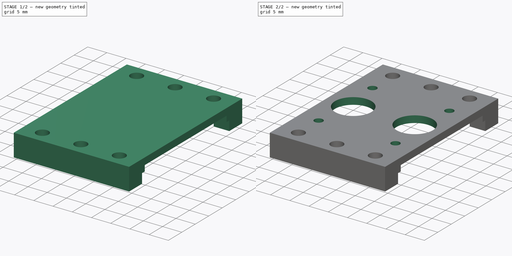
[diagram: build sequence overview — one tinted view per stage of 2, left to right]
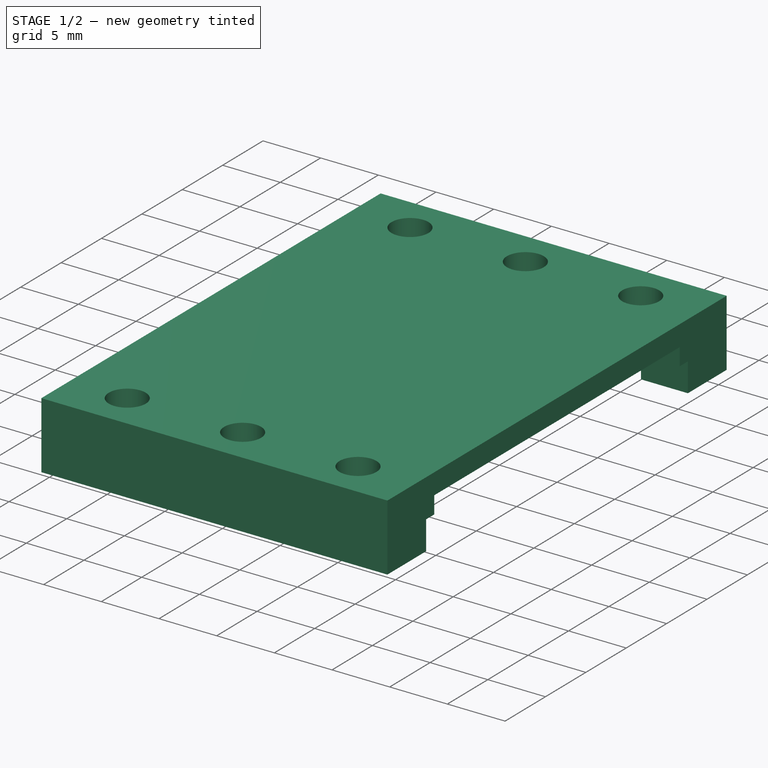
[diagram: stage 1 of 2 — iso view after this stage's code; geometry added in this stage tinted green]
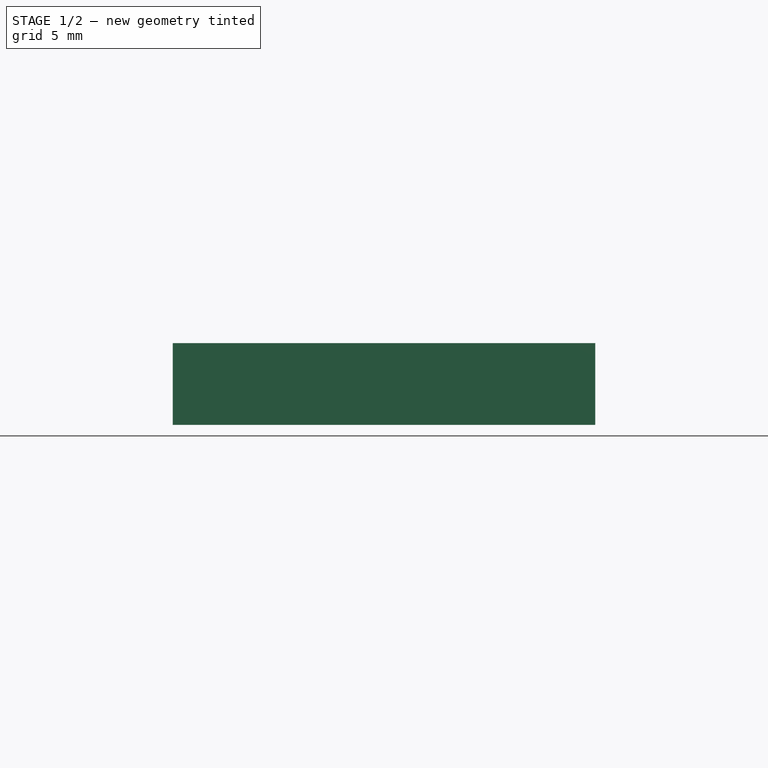
[diagram: stage 1 of 2 — front view after this stage's code; geometry added in this stage tinted green]
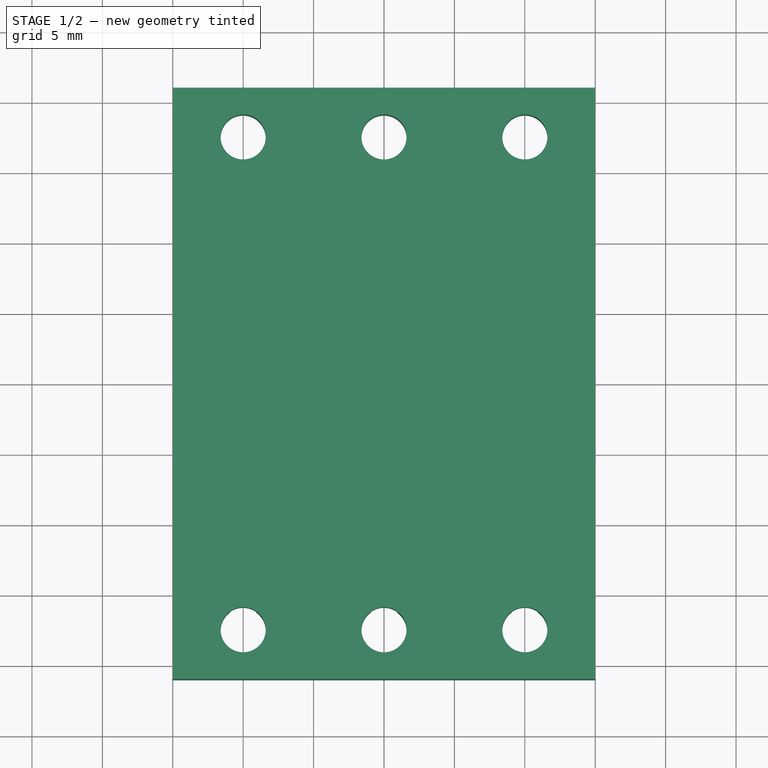
[diagram: stage 1 of 2 — top view after this stage's code; geometry added in this stage tinted green]
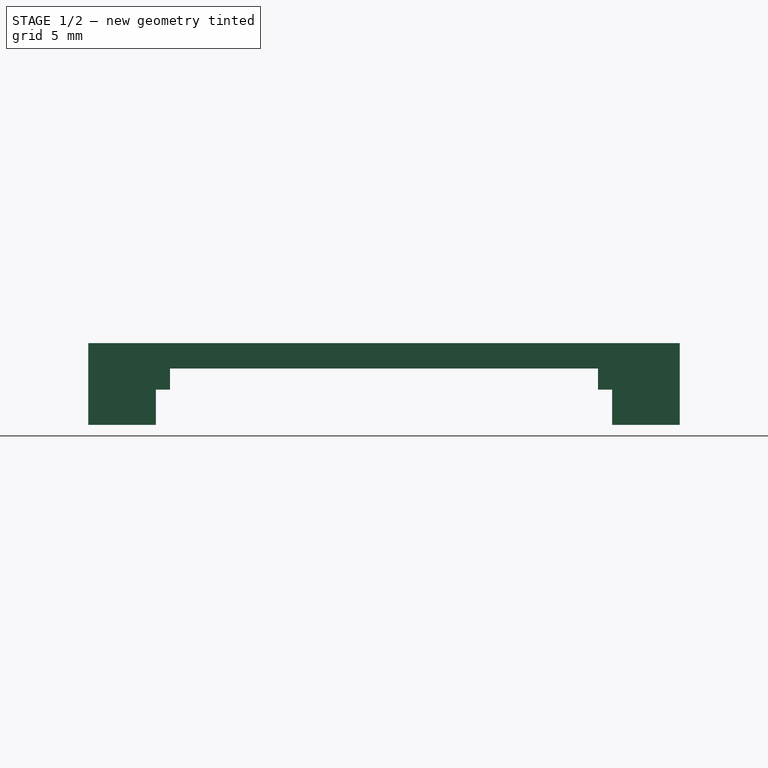
[diagram: stage 1 of 2 — right view after this stage's code; geometry added in this stage tinted green]
FCSTD DOCUMENT  (FreeCAD 0.21R33771 (Git))
Label: carriage_top
License: All rights reserved
LicenseURL: http://en.wikipedia.org/wiki/All_rights_reserved
objects: Sketcher::SketchObject×4, PartDesign::CoordinateSystem×2, PartDesign::Pocket×2, PartDesign::Pad×1, PartDesign::Hole×1, PartDesign::Body×1, App::Part×1
note: 15 computed .brp shape members not serialized (recipe doc carries the construction recipe); baked Part::Feature solids carry a one-line shape summary decoded from their .brp

FEATURE [PartDesign::CoordinateSystem] LCS_0
  AttacherType = Attacher::AttachEngine3D
  MapMode = 2
  Support = -> [X_Axis]
FEATURE [PartDesign::CoordinateSystem] LCS_001
  AttacherType = Attacher::AttachEngine3D
  MapMode = 2
  Support = -> [X_Axis001]
FEATURE [Sketcher::SketchObject] Sketch
  FullyConstrained = true
  MapMode = 5
  Placement = pos=(0,0,0) rot=(0.57735,0.57735,0.57735;2.0944rad)
  Support = -> [YZ_Plane001]
  sketch-geometry (12):
    g0: LineSegment StartX=-21 StartY=0 StartZ=0 EndX=-21 EndY=-5.8 EndZ=0
    g1: LineSegment StartX=-21 StartY=-5.8 StartZ=0 EndX=-16.2 EndY=-5.8 EndZ=0
    g2: LineSegment StartX=-16.2 StartY=-5.8 StartZ=0 EndX=-16.2 EndY=-3.3 EndZ=0
    g3: LineSegment StartX=-16.2 StartY=-3.3 StartZ=0 EndX=-15.2 EndY=-3.3 EndZ=0
    g4: LineSegment StartX=-15.2 StartY=-3.3 StartZ=0 EndX=-15.2 EndY=-1.8 EndZ=0
    g5: LineSegment StartX=-15.2 StartY=-1.8 StartZ=0 EndX=15.2 EndY=-1.8 EndZ=0
    g6: LineSegment StartX=15.2 StartY=-1.8 StartZ=0 EndX=15.2 EndY=-3.3 EndZ=0
    g7: LineSegment StartX=15.2 StartY=-3.3 StartZ=0 EndX=16.2 EndY=-3.3 EndZ=0
    g8: LineSegment StartX=16.2 StartY=-3.3 StartZ=0 EndX=16.2 EndY=-5.8 EndZ=0
    g9: LineSegment StartX=16.2 StartY=-5.8 StartZ=0 EndX=21 EndY=-5.8 EndZ=0
    g10: LineSegment StartX=21 StartY=-5.8 StartZ=0 EndX=21 EndY=0 EndZ=0
    g11: LineSegment StartX=21 StartY=0 StartZ=0 EndX=-21 EndY=0 EndZ=0
  constraints (35):
    c: Vertical(g0)
    c: Coincident(g0,g1)
    c: Horizontal(g1)
    c: Coincident(g1,g2)
    c: Vertical(g2)
    c: Coincident(g2,g3)
    c: Horizontal(g3)
    c: Coincident(g3,g4)
    c: Vertical(g4)
    c: Coincident(g4,g5)
    c: Horizontal(g5)
    c: Coincident(g5,g6)
    c: Vertical(g6)
    c: Coincident(g6,g7)
    c: Coincident(g7,g8)
    c: Vertical(g8)
    c: Coincident(g8,g9)
    c: Coincident(g9,g10)
    c: Vertical(g10)
    c: Coincident(g10,g11)
    c: Coincident(g11,g0)
    c: Horizontal(g11)
    c: Horizontal(g7)
    c: Horizontal(g9)
    c: Equal(g6,g4)
    c: Equal(g8,g2)
    c: Equal(g3,g7)
    c: Equal(g1,g9)
    c: Symmetric(g10,g0,g-1)
    c: DistanceX(g11,g11) = 42
    c: DistanceX(g3,g3) = 1
    c: DistanceX(g5,g5) = 30.4
    c: DistanceY(g6,g6) = 1.5
    c: DistanceY(g8,g8) = 2.5
    c: DistanceY(g4,g0) = 1.8
FEATURE [PartDesign::Pad] Pad
  Direction = (1,-2e-16,3e-16)
  Length = 15
  Length2 = 15
  Placement = pos=(0,0,0) rot=(1,1,1;2.0944rad)
  Profile = -> Sketch
  ReferenceAxis = -> Sketch [N_Axis]
  Type = 4
FEATURE [Sketcher::SketchObject] Sketch001
  FullyConstrained = true
  MapMode = 5
  Support = -> [XY_Plane001]
  sketch-geometry (13):
    g0: LineSegment StartX=-10 StartY=-17.5 StartZ=0 EndX=-10 EndY=17.5 EndZ=0
    g1: LineSegment StartX=-10 StartY=17.5 StartZ=0 EndX=10 EndY=17.5 EndZ=0
    g2: LineSegment StartX=10 StartY=17.5 StartZ=0 EndX=10 EndY=-17.5 EndZ=0
    g3: LineSegment StartX=10 StartY=-17.5 StartZ=0 EndX=-10 EndY=-17.5 EndZ=0
    g4: GeomPoint X=0 Y=0 Z=0
    g5: GeomPoint X=0 Y=17.5 Z=0
    g6: GeomPoint X=0 Y=-17.5 Z=0
    g7: Circle CenterX=-10 CenterY=17.5 CenterZ=0 NormalX=0 NormalY=0 NormalZ=1 AngleXU=0 Radius=1.6
    g8: Circle CenterX=0 CenterY=17.5 CenterZ=0 NormalX=0 NormalY=0 NormalZ=1 AngleXU=0 Radius=1.6
    g9: Circle CenterX=10 CenterY=17.5 CenterZ=0 NormalX=0 NormalY=0 NormalZ=1 AngleXU=0 Radius=1.6
    g10: Circle CenterX=10 CenterY=-17.5 CenterZ=0 NormalX=0 NormalY=0 NormalZ=1 AngleXU=0 Radius=1.6
    g11: Circle CenterX=0 CenterY=-17.5 CenterZ=0 NormalX=0 NormalY=0 NormalZ=1 AngleXU=0 Radius=1.6
    g12: Circle CenterX=-10 CenterY=-17.5 CenterZ=0 NormalX=0 NormalY=0 NormalZ=1 AngleXU=0 Radius=1.6
  constraints (28):
    c: Coincident(g0,g1)
    c: Coincident(g1,g2)
    c: Coincident(g2,g3)
    c: Coincident(g3,g0)
    c: Horizontal(g1)
    c: Horizontal(g3)
    c: Vertical(g0)
    c: Vertical(g2)
    c: Symmetric(g1,g0,g4)
    c: Coincident(g4,g-1)
    c: PointOnObject(g5,g1)
    c: PointOnObject(g6,g3)
    c: Vertical(g4,g6)
    c: Vertical(g5,g4)
    c: DistanceY(g0,g0) = 35
    c: DistanceX(g1,g1) = 20
    c: Coincident(g7,g0)
    c: Coincident(g8,g5)
    c: Coincident(g9,g1)
    c: Coincident(g10,g2)
    c: Coincident(g11,g6)
    c: Coincident(g12,g0)
    c: Equal(g7,g8)
    c: Equal(g8,g9)
    c: Equal(g9,g10)
    c: Equal(g10,g11)
    c: Equal(g11,g12)
    c: Diameter(g10) = 3.2
FEATURE [PartDesign::Hole] Hole
  BaseFeature = -> Pad
  CustomThreadClearance = 0
  Depth = 25
  DepthType = 0
  Diameter = 3.2
  DrillForDepth = false
  DrillPoint = 1
  DrillPointAngle = 118
  HoleCutCountersinkAngle = 90
  HoleCutCustomValues = false
  HoleCutDepth = 0
  HoleCutDiameter = 6.1
  HoleCutType = 0
  ModelThread = false
  Placement = pos=(0,0,0) rot=(1,1,1;2.0944rad)
  Profile = -> Sketch001
  Tapered = false
  TaperedAngle = 90
  ThreadClass = 0
  ThreadDepth = 25
  ThreadDepthType = 0
  ThreadDirection = 0
  ThreadFit = 1
  ThreadSize = 9
  ThreadType = 1
  Threaded = false
  UseCustomThreadClearance = false
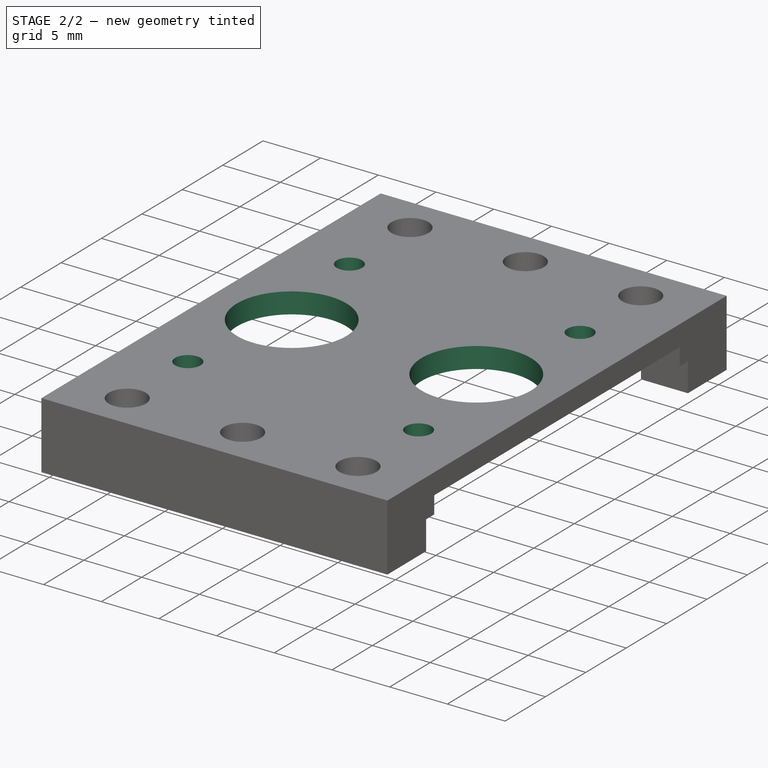
[diagram: stage 2 of 2 — iso view after this stage's code; geometry added in this stage tinted green]
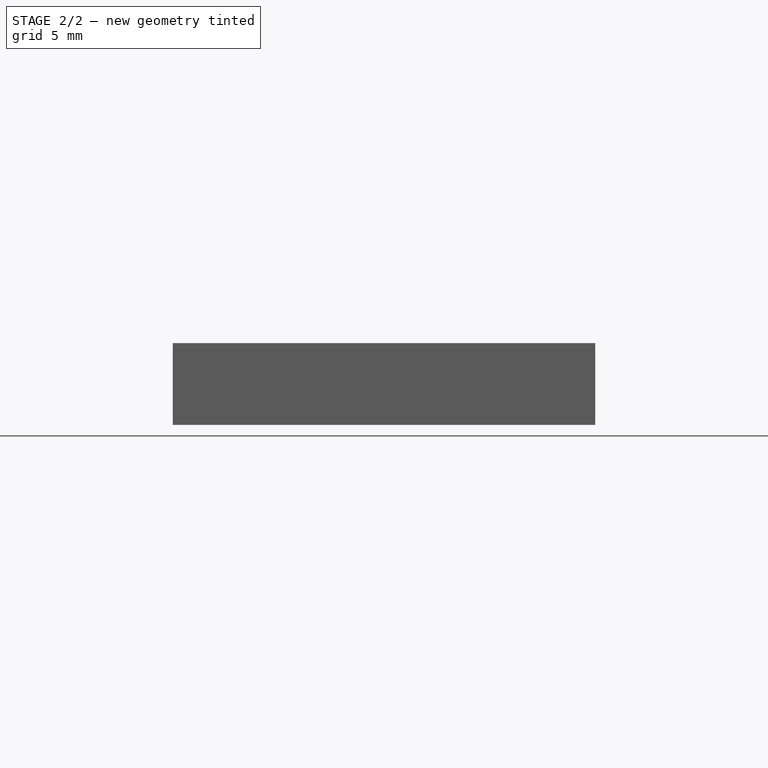
[diagram: stage 2 of 2 — front view after this stage's code; geometry added in this stage tinted green]
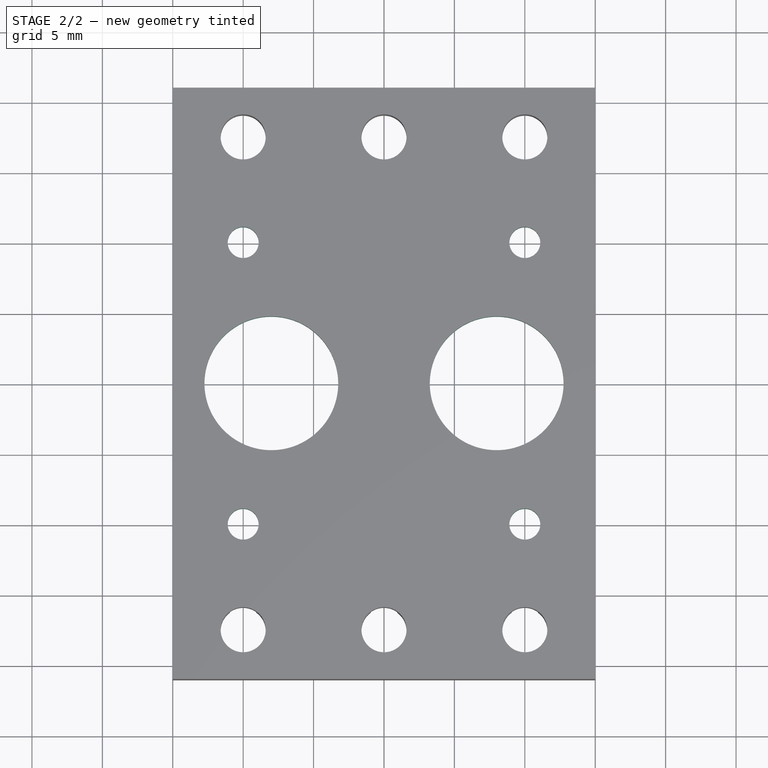
[diagram: stage 2 of 2 — top view after this stage's code; geometry added in this stage tinted green]
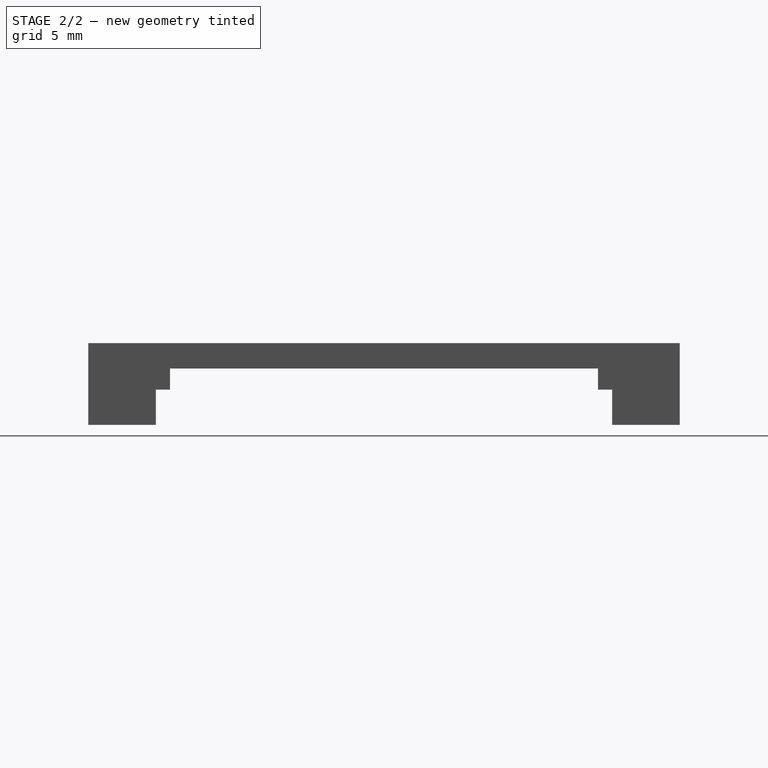
[diagram: stage 2 of 2 — right view after this stage's code; geometry added in this stage tinted green]
FEATURE [Sketcher::SketchObject] Sketch002
  FullyConstrained = true
  MapMode = 2
  Support = -> [XY_Plane001]
  sketch-geometry (9):
    g0: LineSegment StartX=-10 StartY=-10 StartZ=0 EndX=-10 EndY=10 EndZ=0
    g1: LineSegment StartX=-10 StartY=10 StartZ=0 EndX=10 EndY=10 EndZ=0
    g2: LineSegment StartX=10 StartY=10 StartZ=0 EndX=10 EndY=-10 EndZ=0
    g3: LineSegment StartX=10 StartY=-10 StartZ=0 EndX=-10 EndY=-10 EndZ=0
    g4: GeomPoint X=1e-16 Y=0 Z=0
    g5: Circle CenterX=-10 CenterY=10 CenterZ=0 NormalX=0 NormalY=0 NormalZ=1 AngleXU=0 Radius=1.1
    g6: Circle CenterX=10 CenterY=10 CenterZ=0 NormalX=0 NormalY=0 NormalZ=1 AngleXU=0 Radius=1.1
    g7: Circle CenterX=10 CenterY=-10 CenterZ=0 NormalX=0 NormalY=0 NormalZ=1 AngleXU=0 Radius=1.1
    g8: Circle CenterX=-10 CenterY=-10 CenterZ=0 NormalX=0 NormalY=0 NormalZ=1 AngleXU=0 Radius=1.1
  constraints (20):
    c: Coincident(g0,g1)
    c: Coincident(g1,g2)
    c: Coincident(g2,g3)
    c: Coincident(g3,g0)
    c: Horizontal(g1)
    c: Horizontal(g3)
    c: Vertical(g0)
    c: Vertical(g2)
    c: Symmetric(g1,g0,g4)
    c: Coincident(g4,g-1)
    c: Equal(g1,g0)
    c: Coincident(g5,g0)
    c: Coincident(g6,g1)
    c: Coincident(g7,g2)
    c: Coincident(g8,g0)
    c: Equal(g5,g6)
    c: Equal(g6,g7)
    c: Equal(g7,g8)
    c: Diameter(g6) = 2.2
    c: DistanceY(g0,g0) = 20
FEATURE [PartDesign::Pocket] Pocket
  BaseFeature = -> Hole
  Direction = (0,0,-1)
  Length = 5
  Length2 = 5
  Placement = pos=(0,0,0) rot=(1,1,1;2.0944rad)
  Profile = -> Sketch002
  ReferenceAxis = -> Sketch002 [N_Axis]
  Type = 1
FEATURE [Sketcher::SketchObject] Sketch003
  FullyConstrained = true
  MapMode = 5
  Support = -> [XY_Plane001]
  sketch-geometry (2):
    g0: Circle CenterX=-8 CenterY=0 CenterZ=0 NormalX=0 NormalY=0 NormalZ=1 AngleXU=0 Radius=4.75
    g1: Circle CenterX=8 CenterY=0 CenterZ=0 NormalX=0 NormalY=0 NormalZ=1 AngleXU=0 Radius=4.75
  constraints (5):
    c: PointOnObject(g0,g-1)
    c: Diameter(g0) = 9.5
    c: DistanceX(g0,g-1) = 8
    c: Equal(g1,g0)
    c: Symmetric(g1,g0,g-1)
FEATURE [PartDesign::Pocket] Pocket001
  BaseFeature = -> Pocket
  Direction = (0,0,-1)
  Length = 5
  Length2 = 5
  Placement = pos=(0,0,0) rot=(1,1,1;2.0944rad)
  Profile = -> Sketch003
  ReferenceAxis = -> Sketch003 [N_Axis]
  Type = 0
FEATURE [PartDesign::Body] carriage_top001
  Group = -> [LCS_001,Sketch,Pad,Sketch001,Hole,Sketch002,Pocket,Sketch003,Pocket001]
  Origin = -> Origin001
  Tip = -> Pocket001
FEATURE [App::Part] carriage_top
  Group = -> [LCS_0,carriage_top001]
  Origin = -> Origin
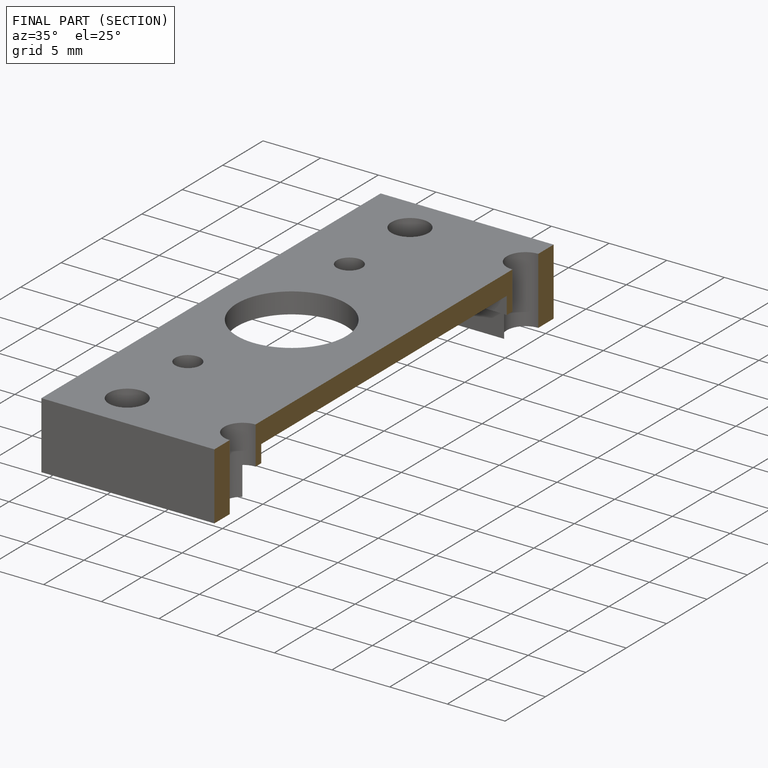
[diagram: finished part — half-section view (interior)]
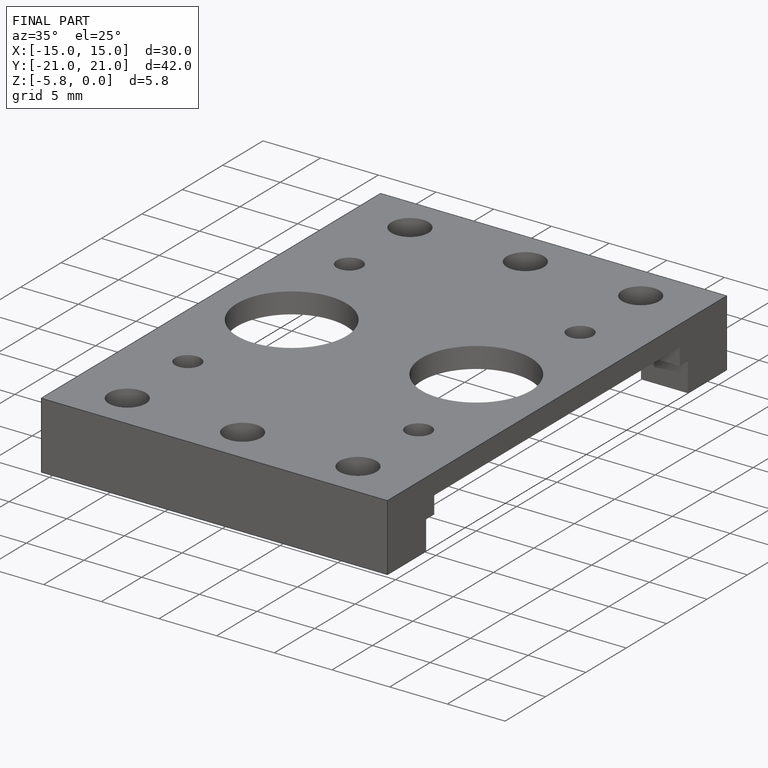
[diagram: finished part — iso view with bounding-box wireframe]
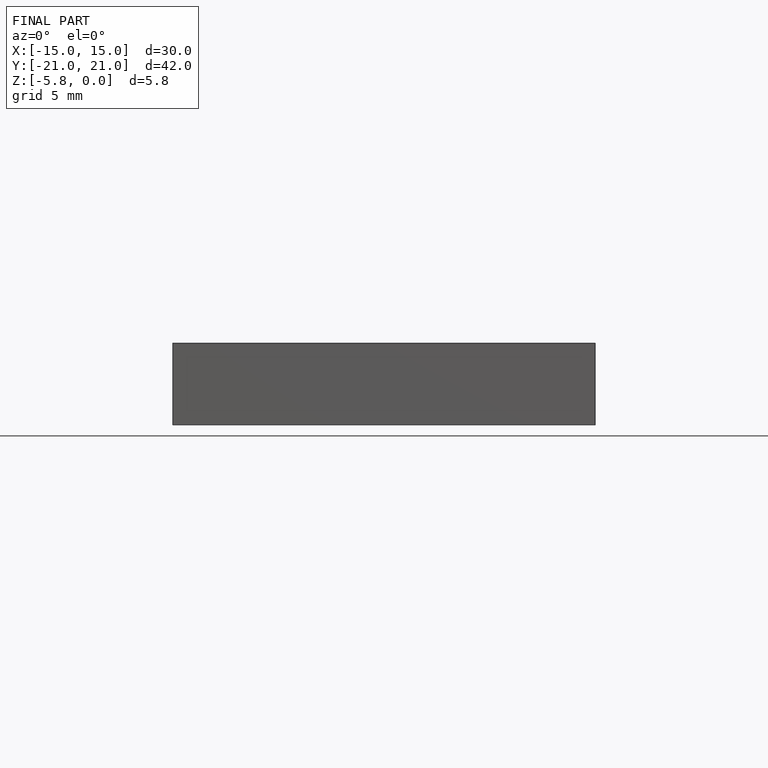
[diagram: finished part — front view with bounding-box wireframe]
